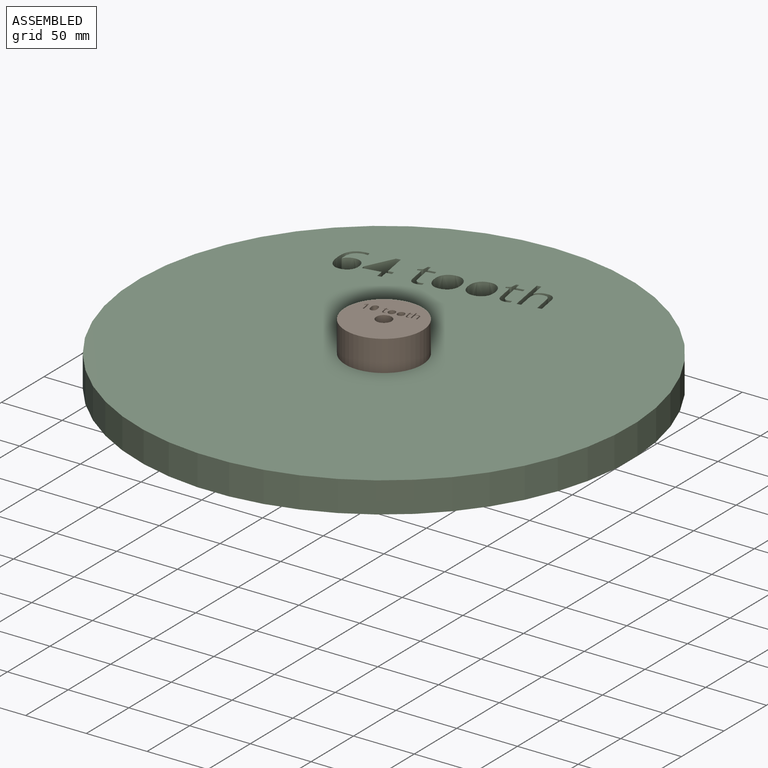
[diagram: assembled view]
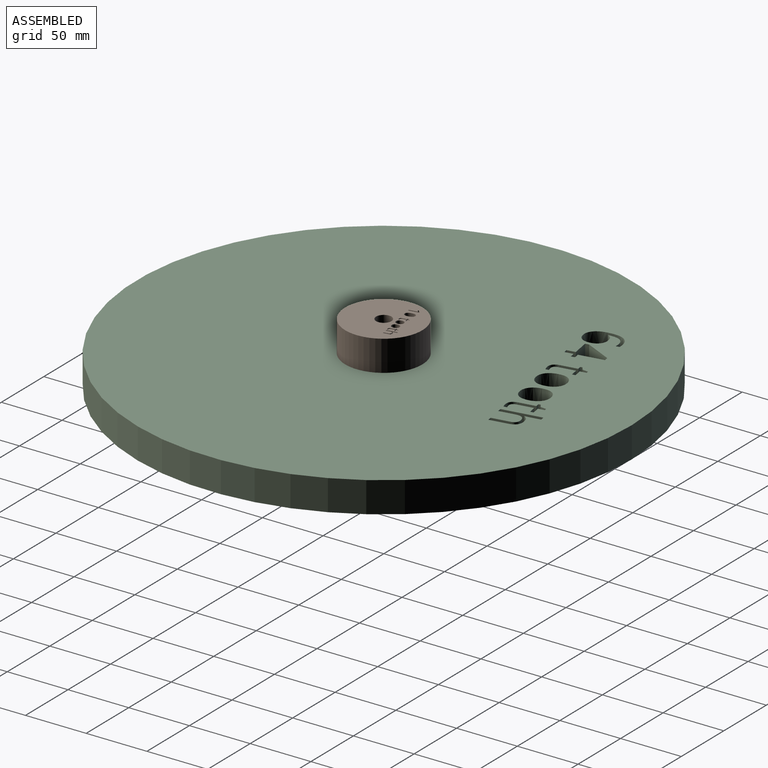
[diagram: assembled view, second angle]
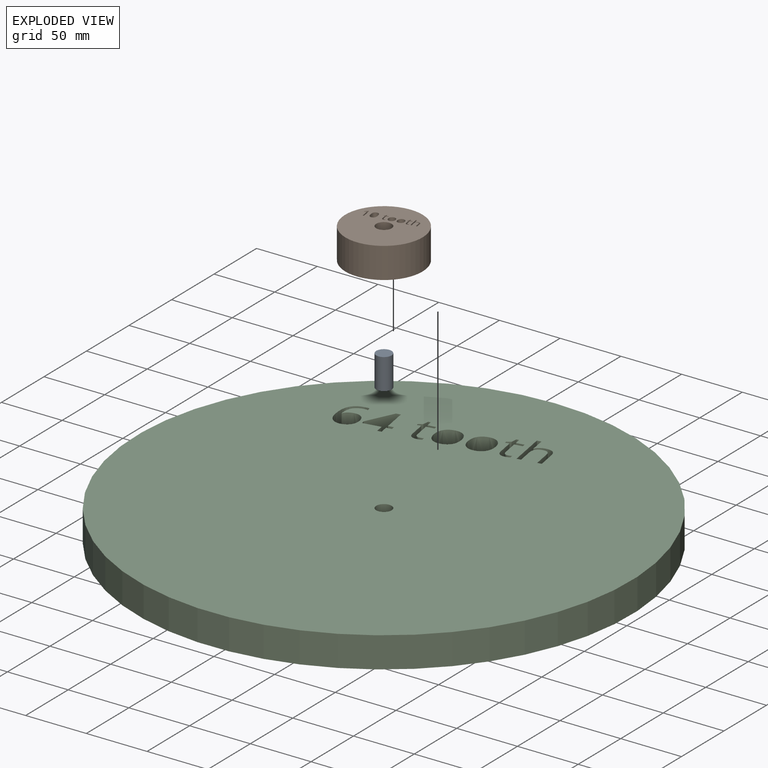
[diagram: exploded view]
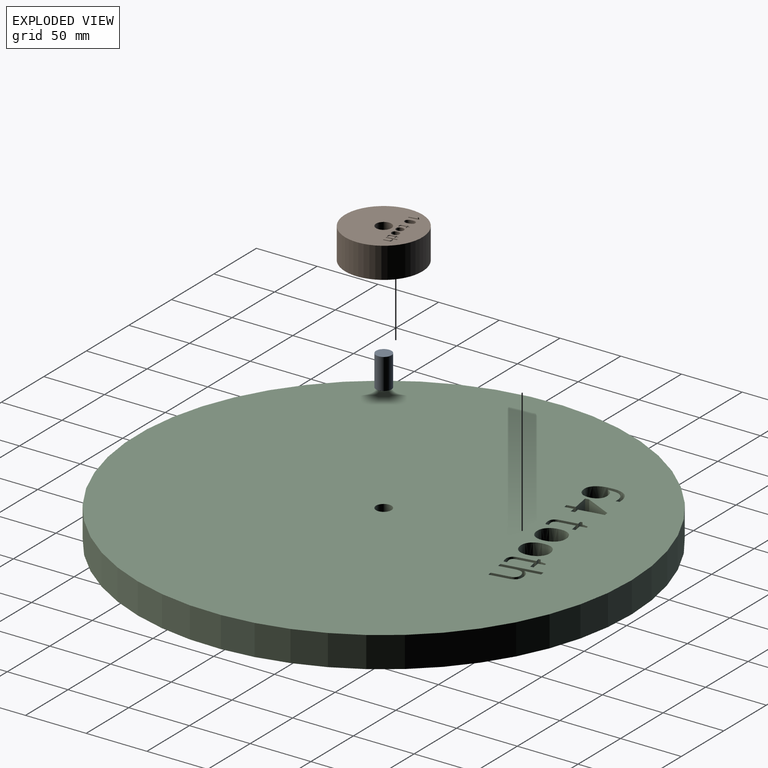
[diagram: exploded view, second angle]
ASSEMBLY  parts=3 mates=2
PART A: 3 faces, bbox 12.7x12.7x25.4 mm
  f0: cylinder r=6.35mm len=25.4mm, axis (0,0,-1), area 1013.4mm2, adj f1,f2
  f1: plane 12.7x12.7mm, normal (0,0,1), area 126.7mm2, adj f0
  f2: plane 12.7x12.7mm, normal (0,0,-1), area 126.7mm2, adj f0
PART B: 95 faces, bbox 63.5x63.5x25.4 mm
  f0: plane 25.4x8.11mm, normal (-1,0,0), area 205.9mm2, adj f1,f92,f93,f94
  f1: plane 25.4x0.9mm, normal (0,1,0), area 22.8mm2, adj f0,f2,f93,f94
  f2: plane 25.4x5.78mm, normal (1,0,0), area 146.7mm2, adj f1,f3,f93,f94
  f3: extruded ~25.4x1.36mm, area 34.7mm2, adj f2,f4,f93,f94
  f4: extruded ~25.4x0.26mm, area 9.1mm2, adj f3,f5,f93,f94
  f5: extruded ~25.4x1.32mm, area 43.3mm2, adj f4,f6,f93,f94
  f6: plane 25.4x0.63mm, normal (0.79,0.61,0), area 20.3mm2, adj f5,f7,f93,f94
  f7: plane 25.4x2.15mm, normal (0.61,-0.79,0), area 68.9mm2, adj f6,f92,f93,f94
  f8: extruded ~25.4x3.1mm, area 81.7mm2, adj f9,f84,f93,f94
  f9: extruded ~25.4x3.14mm, area 82.5mm2, adj f8,f10,f93,f94
  f10: extruded ~25.4x2.03mm, area 60.6mm2, adj f9,f11,f93,f94
  f11: extruded ~25.4x1.99mm, area 60mm2, adj f10,f12,f93,f94
  f12: extruded ~25.4x3.12mm, area 82mm2, adj f11,f13,f93,f94
  f13: extruded ~25.4x3.14mm, area 82.6mm2, adj f12,f14,f93,f94
  f14: extruded ~25.4x2.01mm, area 60.1mm2, adj f13,f84,f93,f94
  f15: extruded ~25.4x2.3mm, area 62.7mm2, adj f16,f85,f93,f94
  f16: extruded ~25.4x2.32mm, area 63.4mm2, adj f15,f17,f93,f94
  f17: extruded ~25.4x2.07mm, area 58.5mm2, adj f16,f18,f93,f94
  f18: extruded ~25.4x1.45mm, area 38.5mm2, adj f17,f19,f93,f94
  f19: extruded ~25.4x1.1mm, area 37.9mm2, adj f18,f20,f93,f94
  f20: extruded ~25.4x1.68mm, area 43.8mm2, adj f19,f21,f93,f94
  f21: extruded ~25.4x2.31mm, area 63.2mm2, adj f20,f22,f93,f94
  f22: extruded ~25.4x2.06mm, area 58.3mm2, adj f21,f85,f93,f94
  f23: plane 25.4x0.92mm, normal (0,1,0), area 23.4mm2, adj f24,f88,f93,f94
  f24: plane 25.4x3.93mm, normal (1,0,0), area 99.9mm2, adj f23,f25,f93,f94
  f25: extruded ~25.4x1.11mm, area 30.1mm2, adj f24,f26,f93,f94
  f26: extruded ~25.4x1.06mm, area 29.3mm2, adj f25,f27,f93,f94
  f27: extruded ~25.4x1.4mm, area 39.2mm2, adj f26,f28,f93,f94
  f28: extruded ~25.4x1.71mm, area 45.7mm2, adj f27,f29,f93,f94
  f29: plane 25.4x3.18mm, normal (-1,0,0), area 80.7mm2, adj f28,f30,f93,f94
  f30: plane 25.4x0.92mm, normal (0,1,0), area 23.4mm2, adj f29,f31,f93,f94
  f31: plane 25.4x8.63mm, normal (1,0,0), area 219.2mm2, adj f30,f32,f93,f94
  f32: plane 25.4x0.92mm, normal (0,-1,0), area 23.4mm2, adj f31,f33,f93,f94
  f33: plane 25.4x2.61mm, normal (-1,0,0), area 66.3mm2, adj f32,f34,f93,f94
  f34: extruded ~25.4x0.78mm, area 19.9mm2, adj f33,f35,f93,f94
  f35: plane 25.4x0.06mm, normal (0,-1,0), area 1.4mm2, adj f34,f36,f93,f94
  f36: extruded ~25.4x0.77mm, area 26.7mm2, adj f35,f37,f93,f94
  f37: extruded ~25.4x1.14mm, area 30mm2, adj f36,f38,f93,f94
  f38: extruded ~25.4x1.67mm, area 45.7mm2, adj f37,f39,f93,f94
  f39: extruded ~25.4x1.68mm, area 46.3mm2, adj f38,f88,f93,f94
  f40: extruded ~25.4x0.72mm, area 20.3mm2, adj f41,f89,f93,f94
  f41: extruded ~25.4x0.47mm, area 12mm2, adj f40,f42,f93,f94
  f42: extruded ~25.4x0.36mm, area 9.3mm2, adj f41,f43,f93,f94
  f43: plane 25.4x0.7mm, normal (-1,0,0), area 17.9mm2, adj f42,f44,f93,f94
  f44: extruded ~25.4x0.44mm, area 11.6mm2, adj f43,f45,f93,f94
  f45: extruded ~25.4x0.53mm, area 13.4mm2, adj f44,f46,f93,f94
  f46: extruded ~25.4x1.86mm, area 74.6mm2, adj f45,f47,f93,f94
  f47: plane 25.4x3.62mm, normal (1,0,0), area 91.9mm2, adj f46,f48,f93,f94
  f48: plane 25.4x0.87mm, normal (0,1,0), area 22.1mm2, adj f47,f49,f93,f94
  f49: plane 25.4x0.44mm, normal (1,0,0), area 11.3mm2, adj f48,f50,f93,f94
  f50: plane 25.4x0.87mm, normal (0.4,-0.92,0), area 24.2mm2, adj f49,f51,f93,f94
  f51: plane 25.4x1.3mm, normal (0.96,-0.29,0), area 34.4mm2, adj f50,f52,f93,f94
  f52: plane 25.4x0.53mm, normal (0,-1,0), area 13.5mm2, adj f51,f53,f93,f94
  f53: plane 25.4x1.41mm, normal (-1,0,0), area 35.8mm2, adj f52,f54,f93,f94
  f54: plane 25.4x1.76mm, normal (0,-1,0), area 44.8mm2, adj f53,f55,f93,f94
  f55: plane 25.4x0.72mm, normal (-1,0,0), area 18.2mm2, adj f54,f56,f93,f94
  f56: plane 25.4x1.76mm, normal (0,1,0), area 44.8mm2, adj f55,f57,f93,f94
  f57: plane 25.4x3.58mm, normal (-1,0,0), area 90.9mm2, adj f56,f89,f93,f94
  f58: extruded ~25.4x2.3mm, area 62.7mm2, adj f59,f90,f93,f94
  f59: extruded ~25.4x2.32mm, area 63.4mm2, adj f58,f60,f93,f94
  f60: extruded ~25.4x2.07mm, area 58.5mm2, adj f59,f61,f93,f94
  f61: extruded ~25.4x1.45mm, area 38.5mm2, adj f60,f62,f93,f94
  f62: extruded ~25.4x1.1mm, area 37.9mm2, adj f61,f63,f93,f94
  f63: extruded ~25.4x1.68mm, area 43.8mm2, adj f62,f64,f93,f94
  f64: extruded ~25.4x2.31mm, area 63.2mm2, adj f63,f65,f93,f94
  f65: extruded ~25.4x2.06mm, area 58.3mm2, adj f64,f90,f93,f94
  f66: extruded ~25.4x0.72mm, area 20.3mm2, adj f67,f91,f93,f94
  f67: extruded ~25.4x0.47mm, area 12mm2, adj f66,f68,f93,f94
  f68: extruded ~25.4x0.36mm, area 9.3mm2, adj f67,f69,f93,f94
  f69: plane 25.4x0.7mm, normal (-1,0,0), area 17.9mm2, adj f68,f70,f93,f94
  f70: extruded ~25.4x0.44mm, area 11.6mm2, adj f69,f71,f93,f94
  f71: extruded ~25.4x0.53mm, area 13.4mm2, adj f70,f72,f93,f94
  f72: extruded ~25.4x1.86mm, area 74.6mm2, adj f71,f73,f93,f94
  f73: plane 25.4x3.62mm, normal (1,0,0), area 91.9mm2, adj f72,f74,f93,f94
  f74: plane 25.4x0.87mm, normal (0,1,0), area 22.1mm2, adj f73,f75,f93,f94
  f75: plane 25.4x0.44mm, normal (1,0,0), area 11.3mm2, adj f74,f76,f93,f94
  f76: plane 25.4x0.87mm, normal (0.4,-0.92,0), area 24.2mm2, adj f75,f77,f93,f94
  f77: plane 25.4x1.3mm, normal (0.96,-0.29,0), area 34.4mm2, adj f76,f78,f93,f94
  f78: plane 25.4x0.53mm, normal (0,-1,0), area 13.5mm2, adj f77,f79,f93,f94
  f79: plane 25.4x1.41mm, normal (-1,0,0), area 35.8mm2, adj f78,f80,f93,f94
  f80: plane 25.4x1.76mm, normal (0,-1,0), area 44.8mm2, adj f79,f81,f93,f94
  f81: plane 25.4x0.72mm, normal (-1,0,0), area 18.2mm2, adj f80,f82,f93,f94
  f82: plane 25.4x1.76mm, normal (0,1,0), area 44.8mm2, adj f81,f83,f93,f94
  f83: plane 25.4x3.58mm, normal (-1,0,0), area 90.9mm2, adj f82,f91,f93,f94
  f84: extruded ~25.4x2.01mm, area 60.5mm2, adj f8,f14,f93,f94
  f85: extruded ~25.4x2.03mm, area 57.6mm2, adj f15,f22,f93,f94
  f86: cylinder r=6.35mm len=25.4mm, axis (0,0,-1), area 1013.4mm2, adj f93,f94
  f87: cylinder r=31.75mm len=63.5mm, axis (0,0,-1), area 5067.1mm2, adj f93,f94
  f88: plane 25.4x3.96mm, normal (-1,0,0), area 100.7mm2, adj f23,f39,f93,f94
  f89: extruded ~25.4x0.84mm, area 22.9mm2, adj f40,f57,f93,f94
  f90: extruded ~25.4x2.03mm, area 57.6mm2, adj f58,f65,f93,f94
  f91: extruded ~25.4x0.84mm, area 22.9mm2, adj f66,f83,f93,f94
  f92: plane 25.4x0.78mm, normal (0,-1,0), area 19.7mm2, adj f0,f7,f93,f94
  f93: plane 63.5x63.5mm, normal (0,0,1), area 2901.8mm2, adj f0,f1,f2,f3,f4,f5,f6,f7
  f94: plane 63.5x63.5mm, normal (0,0,-1), area 2901.8mm2, adj f0,f1,f2,f3,f4,f5,f6,f7
PART C: 104 faces, bbox 406.4x406.4x25.4 mm
  f0: extruded ~25.4x9.78mm, area 262.8mm2, adj f1,f101,f102,f103
  f1: extruded ~25.4x13.28mm, area 354.9mm2, adj f0,f2,f102,f103
  f2: extruded ~25.4x10.21mm, area 293.1mm2, adj f1,f3,f102,f103
  f3: extruded ~25.4x3.67mm, area 94mm2, adj f2,f4,f102,f103
  f4: plane 25.4x2.95mm, normal (-1,0,0), area 74.9mm2, adj f3,f5,f102,f103
  f5: extruded ~25.4x3.63mm, area 93.4mm2, adj f4,f6,f102,f103
  f6: extruded ~25.4x7.4mm, area 210mm2, adj f5,f7,f102,f103
  f7: extruded ~25.4x9.49mm, area 255.9mm2, adj f6,f8,f102,f103
  f8: plane 25.4x0.24mm, normal (0,-1,0), area 6.2mm2, adj f7,f9,f102,f103
  f9: extruded ~25.4x7.18mm, area 213mm2, adj f8,f10,f102,f103
  f10: extruded ~25.4x6.4mm, area 179.2mm2, adj f9,f11,f102,f103
  f11: extruded ~25.4x6.66mm, area 183.8mm2, adj f10,f12,f102,f103
  f12: extruded ~25.4x7.39mm, area 203.9mm2, adj f11,f13,f102,f103
  f13: extruded ~25.4x6.94mm, area 194.6mm2, adj f12,f101,f102,f103
  f14: extruded ~25.4x2.66mm, area 75.4mm2, adj f15,f93,f102,f103
  f15: extruded ~25.4x1.75mm, area 44.7mm2, adj f14,f16,f102,f103
  f16: extruded ~25.4x1.34mm, area 34.8mm2, adj f15,f17,f102,f103
  f17: plane 25.4x2.62mm, normal (-1,0,0), area 66.5mm2, adj f16,f18,f102,f103
  f18: extruded ~25.4x1.64mm, area 43.2mm2, adj f17,f19,f102,f103
  f19: extruded ~25.4x1.95mm, area 49.8mm2, adj f18,f20,f102,f103
  f20: extruded ~25.4x6.91mm, area 277.4mm2, adj f19,f21,f102,f103
  f21: plane 25.4x13.44mm, normal (1,0,0), area 341.4mm2, adj f20,f22,f102,f103
  f22: plane 25.4x3.24mm, normal (0,1,0), area 82.3mm2, adj f21,f23,f102,f103
  f23: plane 25.4x1.65mm, normal (1,0,0), area 41.9mm2, adj f22,f24,f102,f103
  f24: plane 25.4x3.24mm, normal (0.4,-0.92,0), area 89.9mm2, adj f23,f25,f102,f103
  f25: plane 25.4x4.82mm, normal (0.96,-0.29,0), area 127.8mm2, adj f24,f26,f102,f103
  f26: plane 25.4x1.98mm, normal (0,-1,0), area 50.3mm2, adj f25,f27,f102,f103
  f27: plane 25.4x5.24mm, normal (-1,0,0), area 133mm2, adj f26,f28,f102,f103
  f28: plane 25.4x6.56mm, normal (0,-1,0), area 166.5mm2, adj f27,f29,f102,f103
  f29: plane 25.4x2.66mm, normal (-1,0,0), area 67.5mm2, adj f28,f30,f102,f103
  f30: plane 25.4x6.56mm, normal (0,1,0), area 166.5mm2, adj f29,f31,f102,f103
  f31: plane 25.4x13.3mm, normal (-1,0,0), area 337.7mm2, adj f30,f93,f102,f103
  f32: extruded ~25.4x8.53mm, area 233.2mm2, adj f33,f94,f102,f103
  f33: extruded ~25.4x8.63mm, area 235.6mm2, adj f32,f34,f102,f103
  f34: extruded ~25.4x7.69mm, area 217.3mm2, adj f33,f35,f102,f103
  f35: extruded ~25.4x5.38mm, area 143.2mm2, adj f34,f36,f102,f103
  f36: extruded ~25.4x4.08mm, area 140.7mm2, adj f35,f37,f102,f103
  f37: extruded ~25.4x6.23mm, area 162.8mm2, adj f36,f38,f102,f103
  f38: extruded ~25.4x8.6mm, area 234.8mm2, adj f37,f39,f102,f103
  f39: extruded ~25.4x7.67mm, area 216.7mm2, adj f38,f94,f102,f103
  f40: extruded ~25.4x2.66mm, area 75.4mm2, adj f41,f95,f102,f103
  f41: extruded ~25.4x1.75mm, area 44.7mm2, adj f40,f42,f102,f103
  f42: extruded ~25.4x1.34mm, area 34.8mm2, adj f41,f43,f102,f103
  f43: plane 25.4x2.62mm, normal (-1,0,0), area 66.5mm2, adj f42,f44,f102,f103
  f44: extruded ~25.4x1.64mm, area 43.2mm2, adj f43,f45,f102,f103
  f45: extruded ~25.4x1.95mm, area 49.8mm2, adj f44,f46,f102,f103
  f46: extruded ~25.4x6.91mm, area 277.4mm2, adj f45,f47,f102,f103
  f47: plane 25.4x13.44mm, normal (1,0,0), area 341.4mm2, adj f46,f48,f102,f103
  f48: plane 25.4x3.24mm, normal (0,1,0), area 82.3mm2, adj f47,f49,f102,f103
  f49: plane 25.4x1.65mm, normal (1,0,0), area 41.9mm2, adj f48,f50,f102,f103
  f50: plane 25.4x3.24mm, normal (0.4,-0.92,0), area 89.9mm2, adj f49,f51,f102,f103
  f51: plane 25.4x4.82mm, normal (0.96,-0.29,0), area 127.8mm2, adj f50,f52,f102,f103
  f52: plane 25.4x1.98mm, normal (0,-1,0), area 50.3mm2, adj f51,f53,f102,f103
  f53: plane 25.4x5.24mm, normal (-1,0,0), area 133mm2, adj f52,f54,f102,f103
  f54: plane 25.4x6.56mm, normal (0,-1,0), area 166.5mm2, adj f53,f55,f102,f103
  f55: plane 25.4x2.66mm, normal (-1,0,0), area 67.5mm2, adj f54,f56,f102,f103
  f56: plane 25.4x6.56mm, normal (0,1,0), area 166.5mm2, adj f55,f57,f102,f103
  f57: plane 25.4x13.3mm, normal (-1,0,0), area 337.7mm2, adj f56,f95,f102,f103
  f58: plane 25.4x3.42mm, normal (0,1,0), area 86.9mm2, adj f59,f96,f102,f103
  f59: plane 25.4x14.62mm, normal (1,0,0), area 371.2mm2, adj f58,f60,f102,f103
  f60: extruded ~25.4x4.12mm, area 111.9mm2, adj f59,f61,f102,f103
  f61: extruded ~25.4x3.94mm, area 109mm2, adj f60,f62,f102,f103
  f62: extruded ~25.4x5.2mm, area 145.7mm2, adj f61,f63,f102,f103
  f63: extruded ~25.4x6.35mm, area 169.7mm2, adj f62,f64,f102,f103
  f64: plane 25.4x11.81mm, normal (-1,0,0), area 300mm2, adj f63,f65,f102,f103
  f65: plane 25.4x3.42mm, normal (0,1,0), area 86.9mm2, adj f64,f66,f102,f103
  f66: plane 32.07x25.4mm, normal (1,0,0), area 814.7mm2, adj f65,f67,f102,f103
  f67: plane 25.4x3.42mm, normal (0,-1,0), area 86.9mm2, adj f66,f68,f102,f103
  f68: plane 25.4x9.71mm, normal (-1,0,0), area 246.6mm2, adj f67,f69,f102,f103
  f69: extruded ~25.4x2.91mm, area 74.1mm2, adj f68,f70,f102,f103
  f70: plane 25.4x0.2mm, normal (0,-1,0), area 5.2mm2, adj f69,f71,f102,f103
  f71: extruded ~25.4x2.88mm, area 99.2mm2, adj f70,f72,f102,f103
  f72: extruded ~25.4x4.25mm, area 111.7mm2, adj f71,f73,f102,f103
  f73: extruded ~25.4x6.22mm, area 169.7mm2, adj f72,f74,f102,f103
  f74: extruded ~25.4x6.26mm, area 172.1mm2, adj f73,f96,f102,f103
  f75: extruded ~25.4x8.53mm, area 233.2mm2, adj f76,f99,f102,f103
  f76: extruded ~25.4x8.63mm, area 235.6mm2, adj f75,f77,f102,f103
  f77: extruded ~25.4x7.69mm, area 217.3mm2, adj f76,f78,f102,f103
  f78: extruded ~25.4x5.38mm, area 143.2mm2, adj f77,f79,f102,f103
  f79: extruded ~25.4x4.08mm, area 140.7mm2, adj f78,f80,f102,f103
  f80: extruded ~25.4x6.23mm, area 162.8mm2, adj f79,f81,f102,f103
  f81: extruded ~25.4x8.6mm, area 234.8mm2, adj f80,f82,f102,f103
  f82: extruded ~25.4x7.67mm, area 216.7mm2, adj f81,f99,f102,f103
  f83: plane 25.4x3.11mm, normal (-1,0,0), area 79.1mm2, adj f84,f100,f102,f103
  f84: plane 25.4x4.47mm, normal (0,1,0), area 113.6mm2, adj f83,f85,f102,f103
  f85: plane 25.4x6.93mm, normal (-1,0,0), area 175.9mm2, adj f84,f86,f102,f103
  f86: plane 25.4x3.28mm, normal (0,1,0), area 83.3mm2, adj f85,f87,f102,f103
  f87: plane 25.4x6.93mm, normal (1,0,0), area 175.9mm2, adj f86,f88,f102,f103
  f88: plane 25.4x14.66mm, normal (0,1,0), area 372.3mm2, adj f87,f89,f102,f103
  f89: plane 25.4x2.99mm, normal (1,0,0), area 75.9mm2, adj f88,f90,f102,f103
  f90: plane 25.4x20.39mm, normal (0.82,-0.57,0), area 632.6mm2, adj f89,f91,f102,f103
  f91: plane 25.4x3.63mm, normal (0,-1,0), area 92.1mm2, adj f90,f92,f102,f103
  f92: plane 25.4x20.26mm, normal (-1,0,0), area 514.7mm2, adj f91,f100,f102,f103
  f93: extruded ~25.4x3.13mm, area 85.1mm2, adj f14,f31,f102,f103
  f94: extruded ~25.4x7.53mm, area 214.1mm2, adj f32,f39,f102,f103
  f95: extruded ~25.4x3.13mm, area 85.1mm2, adj f40,f57,f102,f103
  f96: plane 25.4x14.73mm, normal (-1,0,0), area 374.3mm2, adj f58,f74,f102,f103
  f97: cylinder r=203.2mm len=406.4mm, axis (0,0,-1), area 32429.3mm2, adj f102,f103
  f98: cylinder r=6.35mm len=25.4mm, axis (0,0,-1), area 1013.4mm2, adj f102,f103
  f99: extruded ~25.4x7.53mm, area 214.1mm2, adj f75,f82,f102,f103
  f100: plane 25.4x4.47mm, normal (0,-1,0), area 113.6mm2, adj f83,f92,f102,f103
  f101: extruded ~25.4x7.42mm, area 216.5mm2, adj f0,f13,f102,f103
  f102: plane 406.4x406.4mm, normal (0,0,1), area 127631.4mm2, adj f0,f1,f2,f3,f4,f5,f6,f7
  f103: plane 406.4x406.4mm, normal (0,0,-1), area 127631.4mm2, adj f0,f1,f2,f3,f4,f5,f6,f7
PLACE A at identity fixed
PLACE B rot(axis=(0,0,1),9.6deg) t=(0,0,0)mm
PLACE C rot(axis=(0,0,1),9.6deg) t=(0,0,0)mm
MATE fastened C.f98 <-> B.f86  axis (0,0,1) through (0,0,25.4)mm
MATE revolute C.f98 <-> A.f0  axis (0,0,1) through (0,0,25.4)mm
